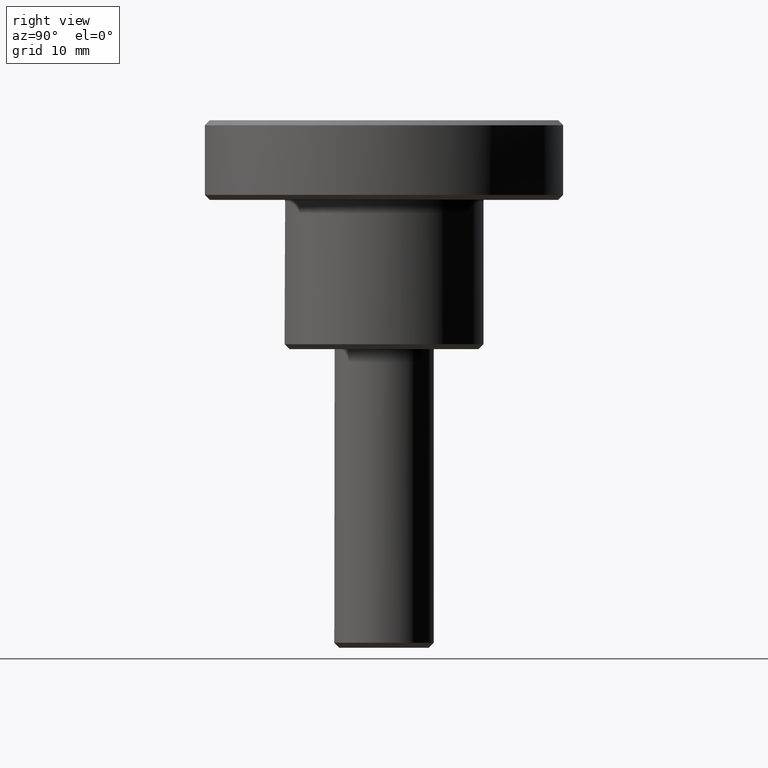
[diagram: clean part render]
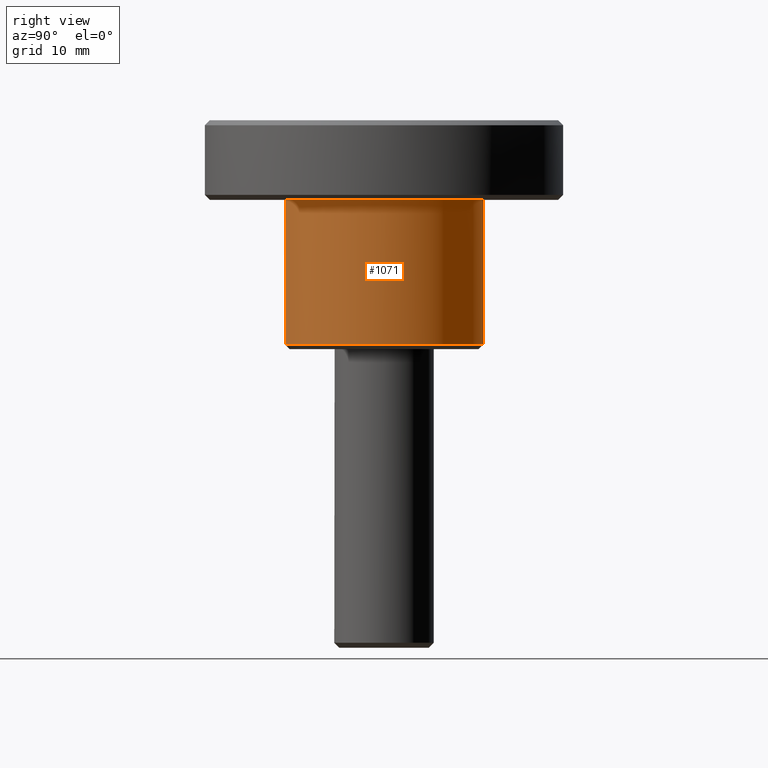
[diagram: same view with one face highlighted and labeled with its STEP entity id]
A machine part, right view. The second image highlights one B-rep face of the part: STEP entity #1071.
In plain terms, the highlighted face is a freeform B-spline surface patch.
Its self-contained STEP definition (entity closure, byte-faithful):
#701=CARTESIAN_POINT('',(1.241268920902600,-9.922663526789375,0.499999999999926));
#702=VERTEX_POINT('',#701);
#759=CARTESIAN_POINT('',(-0.087263377980344,9.999619247893588,0.499999999999562));
#760=VERTEX_POINT('',#759);
#766=CARTESIAN_POINT('',(10.0,0.0,0.499999999999945));
#767=VERTEX_POINT('',#766);
#768=CARTESIAN_POINT('',(10.0,0.0,0.499999999999945));
#769=CARTESIAN_POINT('',(10.000000000000002,10.000000000000002,0.499999999999945));
#770=CARTESIAN_POINT('',(0.0,10.0,0.499999999999945));
#771=CARTESIAN_POINT('',(-0.043632519648863,10.000000000000002,0.499999999999945));
#772=CARTESIAN_POINT('',(-0.087263377980344,9.999619247893588,0.499999999999562));
#780=(BOUNDED_CURVE()B_SPLINE_CURVE(2,(#768,#769,#770,#771,#772),.UNSPECIFIED.,.F.,.U.)B_SPLINE_CURVE_WITH_KNOTS((3,2,3),(0.500000000000000,0.750000000000000,0.751539859510173),.UNSPECIFIED.)CURVE()GEOMETRIC_REPRESENTATION_ITEM()RATIONAL_B_SPLINE_CURVE((1.0,0.707106781186548,1.0,0.998195942366180,0.996414108694795))REPRESENTATION_ITEM(''));
#781=EDGE_CURVE('',#767,#760,#780,.T.);
#783=CARTESIAN_POINT('',(1.241268920902600,-9.922663526789375,0.499999999999926));
#784=CARTESIAN_POINT('',(9.999999999999998,-8.826995952693725,0.499999999999945));
#785=CARTESIAN_POINT('',(10.0,0.0,0.499999999999945));
#793=(BOUNDED_CURVE()B_SPLINE_CURVE(2,(#783,#784,#785),.UNSPECIFIED.,.F.,.U.)B_SPLINE_CURVE_WITH_KNOTS((3,3),(0.271473740316460,0.500000000000000),.UNSPECIFIED.)CURVE()GEOMETRIC_REPRESENTATION_ITEM()RATIONAL_B_SPLINE_CURVE((0.954005796379999,0.732264832871556,1.0))REPRESENTATION_ITEM(''));
#794=EDGE_CURVE('',#702,#767,#793,.T.);
#1005=CARTESIAN_POINT('',(1.241280020798293,-9.922662138255385,0.137499999999943));
#1006=CARTESIAN_POINT('',(10.077328305024446,-8.817312581332210,0.137499999999943));
#1007=CARTESIAN_POINT('',(9.999619230641709,0.087265354983739,0.137499999999943));
#1008=CARTESIAN_POINT('',(9.912353875657971,10.086884585625448,0.137499999999943));
#1009=CARTESIAN_POINT('',(-0.087265354983739,9.999619230641709,0.137499999999943));
#1010=CARTESIAN_POINT('',(1.241280020798293,-9.922662138255385,15.371562500000005));
#1011=CARTESIAN_POINT('',(10.077328305024446,-8.817312581332210,15.371562500000008));
#1012=CARTESIAN_POINT('',(9.999619230641709,0.087265354983739,15.371562500000000));
#1013=CARTESIAN_POINT('',(9.912353875657971,10.086884585625448,15.371562500000001));
#1014=CARTESIAN_POINT('',(-0.087265354983739,9.999619230641709,15.371562500000000));
#1022=(BOUNDED_SURFACE()B_SPLINE_SURFACE(2,1,((#1005,#1010),(#1006,#1011),(#1007,#1012),(#1008,#1013),(#1009,#1014)),.UNSPECIFIED.,.F.,.F.,.U.)B_SPLINE_SURFACE_WITH_KNOTS((3,2,3),(2,2),(0.0,15.243059095329890,31.811601590253691),(0.0,15.234062500000061),.UNSPECIFIED.)GEOMETRIC_REPRESENTATION_ITEM()RATIONAL_B_SPLINE_SURFACE(((0.956886118190660,0.956886118190660),(0.730538238691624,0.730538238691624),(1.0,1.0),(0.707106781186548,0.707106781186548),(1.0,1.0)))REPRESENTATION_ITEM('')SURFACE());
#1023=ORIENTED_EDGE('',*,*,#794,.T.);
#1024=ORIENTED_EDGE('',*,*,#781,.T.);
#1025=CARTESIAN_POINT('',(-0.087260410257128,9.999619273791241,15.0));
#1026=VERTEX_POINT('',#1025);
#1027=CARTESIAN_POINT('',(-0.087263377980344,9.999619247893588,0.499999999999562));
#1028=CARTESIAN_POINT('',(-0.087260410257128,9.999619273791241,15.0));
#1029=QUASI_UNIFORM_CURVE('',1,(#1027,#1028),.UNSPECIFIED.,.F.,.U.);
#1030=EDGE_CURVE('',#760,#1026,#1029,.T.);
#1031=ORIENTED_EDGE('',*,*,#1030,.T.);
#1032=CARTESIAN_POINT('',(10.0,0.0,15.0));
#1033=VERTEX_POINT('',#1032);
#1034=CARTESIAN_POINT('',(-0.087260410257128,9.999619273791241,14.999999999999998));
#1035=CARTESIAN_POINT('',(-0.043631035702508,10.0,14.999999999999996));
#1036=CARTESIAN_POINT('',(0.0,10.0,15.0));
#1037=CARTESIAN_POINT('',(10.000000000000002,10.000000000000002,14.999999999999995));
#1038=CARTESIAN_POINT('',(10.0,0.0,15.0));
#1046=(BOUNDED_CURVE()B_SPLINE_CURVE(2,(#1034,#1035,#1036,#1037,#1038),.UNSPECIFIED.,.F.,.U.)B_SPLINE_CURVE_WITH_KNOTS((3,2,3),(0.248460192766126,0.250000000000000,0.500000000000000),.UNSPECIFIED.)CURVE()GEOMETRIC_REPRESENTATION_ITEM()RATIONAL_B_SPLINE_CURVE((0.996414229676857,0.998196003611674,1.0,0.707106781186548,1.0))REPRESENTATION_ITEM(''));
#1047=EDGE_CURVE('',#1026,#1033,#1046,.T.);
#1048=ORIENTED_EDGE('',*,*,#1047,.T.);
#1049=CARTESIAN_POINT('',(1.241276359630158,-9.922662596249541,15.0));
#1050=VERTEX_POINT('',#1049);
#1051=CARTESIAN_POINT('',(10.0,0.0,15.0));
#1052=CARTESIAN_POINT('',(10.0,-8.826989283783252,14.999999999999998));
#1053=CARTESIAN_POINT('',(1.241276359630158,-9.922662596249541,15.000000000000002));
#1061=(BOUNDED_CURVE()B_SPLINE_CURVE(2,(#1051,#1052,#1053),.UNSPECIFIED.,.F.,.U.)B_SPLINE_CURVE_WITH_KNOTS((3,3),(0.500000000000000,0.728526133254647),.UNSPECIFIED.)CURVE()GEOMETRIC_REPRESENTATION_ITEM()RATIONAL_B_SPLINE_CURVE((1.0,0.732264980992218,0.954005551030099))REPRESENTATION_ITEM(''));
#1062=EDGE_CURVE('',#1033,#1050,#1061,.T.);
#1063=ORIENTED_EDGE('',*,*,#1062,.T.);
#1064=CARTESIAN_POINT('',(1.241268920902600,-9.922663526789375,0.499999999999926));
#1065=CARTESIAN_POINT('',(1.241276359630158,-9.922662596249541,15.0));
#1066=QUASI_UNIFORM_CURVE('',1,(#1064,#1065),.UNSPECIFIED.,.F.,.U.);
#1067=EDGE_CURVE('',#702,#1050,#1066,.T.);
#1068=ORIENTED_EDGE('',*,*,#1067,.F.);
#1069=EDGE_LOOP('',(#1023,#1024,#1031,#1048,#1063,#1068));
#1070=FACE_OUTER_BOUND('',#1069,.T.);
#1071=ADVANCED_FACE('',(#1070),#1022,.T.);